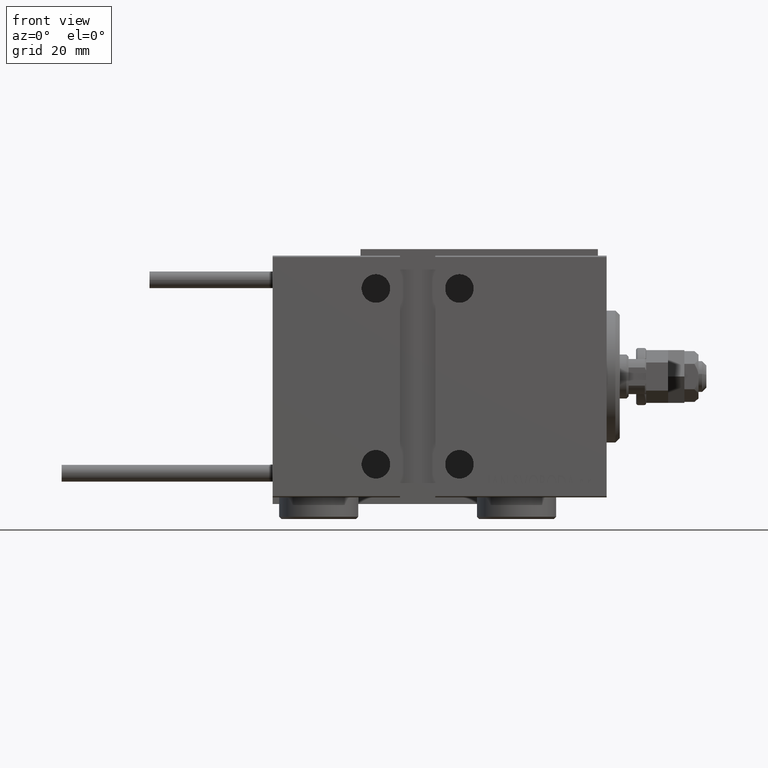
[diagram: clean part render]
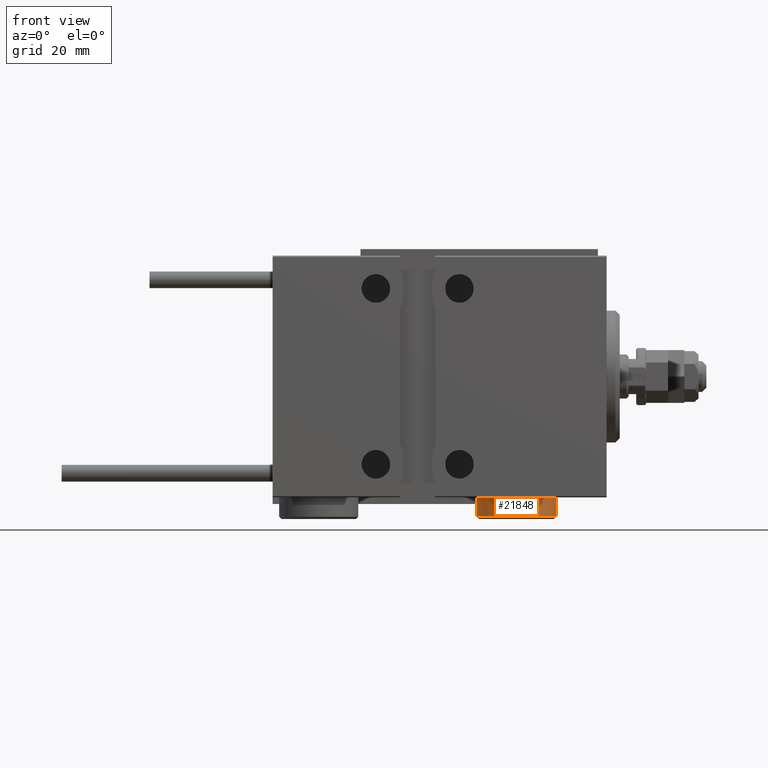
[diagram: same view with one face highlighted and labeled with its STEP entity id]
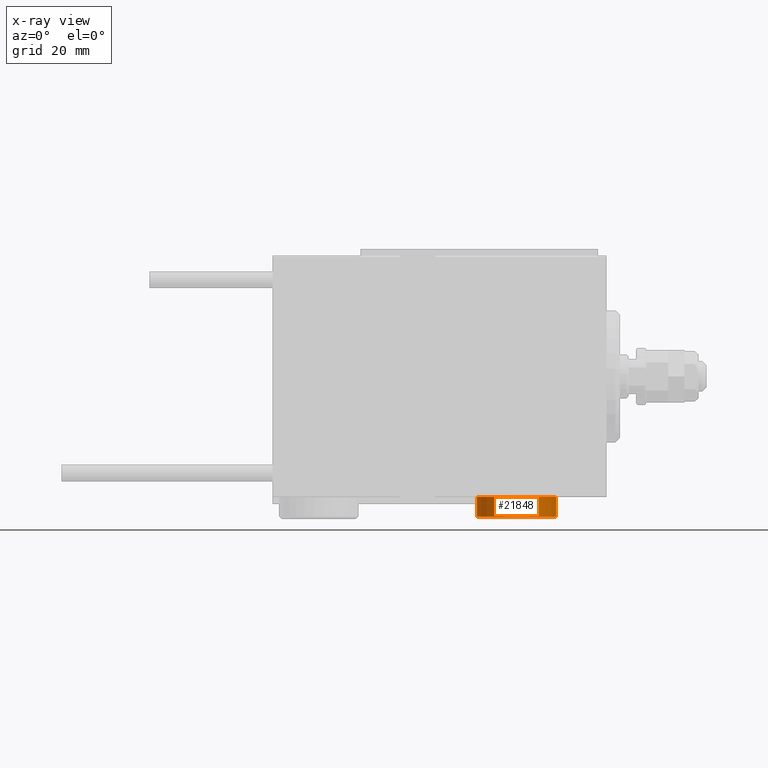
[diagram: x-ray of the same camera — body ghosted, the highlighted face saturated]
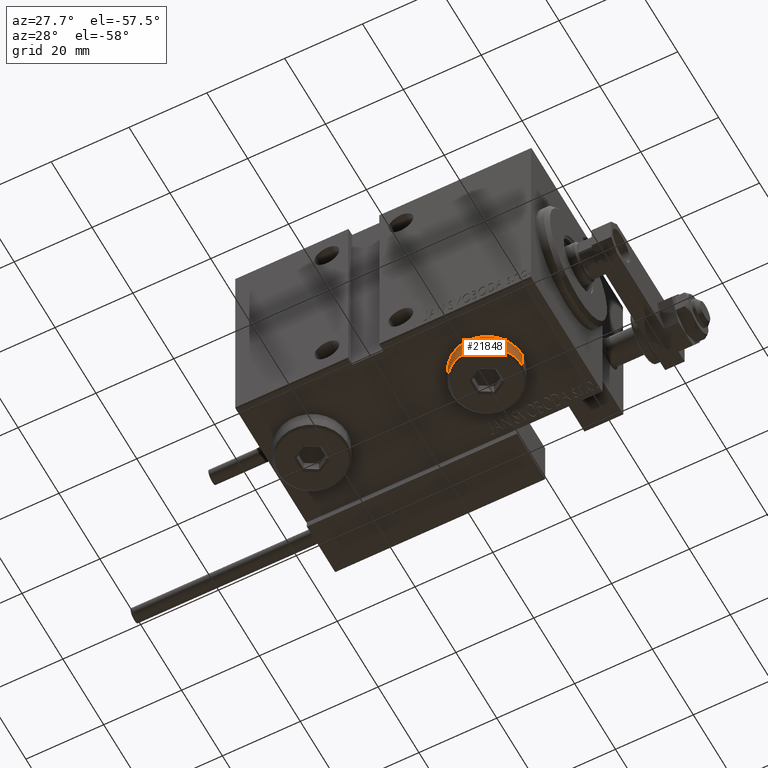
[diagram: same view with one face highlighted and labeled with its STEP entity id]
A machine part, front view. The second image highlights one B-rep face of the part: STEP entity #21848.
The next image is the same camera in x-ray: the body ghosted, the highlighted face saturated — about 0% of this face is hidden behind the body in this view.
A second angle (auxiliary view) of the same face is appended — the face is thin or edge-on in the first view.
In plain terms, the highlighted cylindrical surface (partial cylindrical patch) has radius 9 mm, axis along (0, 0, 1).
Its self-contained STEP definition (entity closure, byte-faithful):
#514 = CARTESIAN_POINT ( 'NONE',  ( 0.000000000000000000, 0.000000000000000000, 5.000000000000000000 ) ) ;
#1754 = CARTESIAN_POINT ( 'NONE',  ( -9.000000000000001776, 0.000000000000000000, 0.000000000000000000 ) ) ;
#2103 = VECTOR ( 'NONE', #14672, 1000.000000000000000 ) ;
#2499 = DIRECTION ( 'NONE',  ( 0.000000000000000000, 0.000000000000000000, 1.000000000000000000 ) ) ;
#2722 = LINE ( 'NONE', #30014, #2103 ) ;
#4470 = VECTOR ( 'NONE', #45291, 1000.000000000000000 ) ;
#6128 = CARTESIAN_POINT ( 'NONE',  ( 0.000000000000000000, 0.000000000000000000, 0.000000000000000000 ) ) ;
#6546 = EDGE_CURVE ( 'NONE', #19999, #21415, #2722, .T. ) ;
#9173 = ORIENTED_EDGE ( 'NONE', *, *, #27138, .T. ) ;
#10549 = VERTEX_POINT ( 'NONE', #44534 ) ;
#11077 = CIRCLE ( 'NONE', #40164, 9.000000000000001776 ) ;
#13887 = CARTESIAN_POINT ( 'NONE',  ( -9.000000000000001776, 0.000000000000000000, 4.500000000000006217 ) ) ;
#14672 = DIRECTION ( 'NONE',  ( -0.000000000000000000, -0.000000000000000000, -1.000000000000000000 ) ) ;
#14981 = ORIENTED_EDGE ( 'NONE', *, *, #31067, .T. ) ;
#15953 = AXIS2_PLACEMENT_3D ( 'NONE', #6128, #2499, #34210 ) ;
#17442 = LINE ( 'NONE', #29400, #4470 ) ;
#19929 = AXIS2_PLACEMENT_3D ( 'NONE', #514, #23672, #47868 ) ;
#19999 = VERTEX_POINT ( 'NONE', #13887 ) ;
#20683 = CARTESIAN_POINT ( 'NONE',  ( 9.000000000000001776, 1.102182119232617911E-15, 0.000000000000000000 ) ) ;
#20855 = DIRECTION ( 'NONE',  ( 1.000000000000000000, 0.000000000000000000, 0.000000000000000000 ) ) ;
#21415 = VERTEX_POINT ( 'NONE', #1754 ) ;
#21848 = ADVANCED_FACE ( 'NONE', ( #43708 ), #35382, .T. ) ;
#22617 = ORIENTED_EDGE ( 'NONE', *, *, #6546, .F. ) ;
#23672 = DIRECTION ( 'NONE',  ( -0.000000000000000000, -0.000000000000000000, -1.000000000000000000 ) ) ;
#27138 = EDGE_CURVE ( 'NONE', #33327, #21415, #30916, .T. ) ;
#29400 = CARTESIAN_POINT ( 'NONE',  ( 9.000000000000001776, 1.102182119232617911E-15, 5.000000000000000000 ) ) ;
#30014 = CARTESIAN_POINT ( 'NONE',  ( -9.000000000000001776, 0.000000000000000000, 5.000000000000000000 ) ) ;
#30018 = EDGE_LOOP ( 'NONE', ( #14981, #32209, #9173, #22617 ) ) ;
#30916 = CIRCLE ( 'NONE', #15953, 9.000000000000001776 ) ;
#31067 = EDGE_CURVE ( 'NONE', #19999, #10549, #11077, .T. ) ;
#32209 = ORIENTED_EDGE ( 'NONE', *, *, #34909, .T. ) ;
#32815 = CARTESIAN_POINT ( 'NONE',  ( 0.000000000000000000, 0.000000000000000000, 4.500000000000006217 ) ) ;
#33327 = VERTEX_POINT ( 'NONE', #20683 ) ;
#34210 = DIRECTION ( 'NONE',  ( 1.000000000000000000, 0.000000000000000000, 0.000000000000000000 ) ) ;
#34909 = EDGE_CURVE ( 'NONE', #10549, #33327, #17442, .T. ) ;
#35382 = CYLINDRICAL_SURFACE ( 'NONE', #19929, 9.000000000000001776 ) ;
#40164 = AXIS2_PLACEMENT_3D ( 'NONE', #32815, #40636, #20855 ) ;
#40636 = DIRECTION ( 'NONE',  ( 0.000000000000000000, 0.000000000000000000, -1.000000000000000000 ) ) ;
#43708 = FACE_OUTER_BOUND ( 'NONE', #30018, .T. ) ;
#44534 = CARTESIAN_POINT ( 'NONE',  ( 9.000000000000001776, 1.102182119232617911E-15, 4.500000000000006217 ) ) ;
#45291 = DIRECTION ( 'NONE',  ( -0.000000000000000000, -0.000000000000000000, -1.000000000000000000 ) ) ;
#47868 = DIRECTION ( 'NONE',  ( -1.000000000000000000, 0.000000000000000000, 0.000000000000000000 ) ) ;